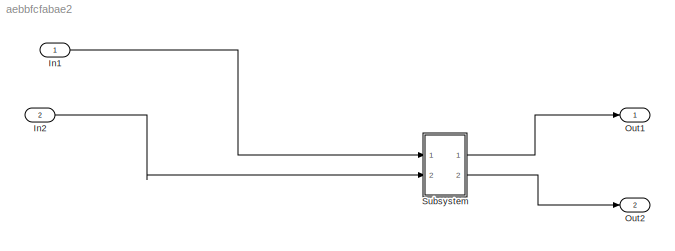
MODEL slx_aebbfcfabae2
KIND model
CONFIG AbsTol = auto
CONFIG FixedStep = auto
CONFIG MaxStep = auto
CONFIG MinStep = auto
CONFIG RelTol = 1e-3
CONFIG SampleTimeConstraint = Unconstrained
CONFIG Solver = VariableStepAuto
CONFIG SolverMode = Auto
CONFIG SolverName = VariableStepAuto
CONFIG StartTime = 0.0
CONFIG StopTime = 10.0
BLOCK [Inport] In1
  IconDisplay = Port number
BLOCK [Inport] In2
  IconDisplay = Port number
  Port = 2
BLOCK [Outport] Out1
  IconDisplay = Port number
BLOCK [Outport] Out2
  IconDisplay = Port number
  Port = 2
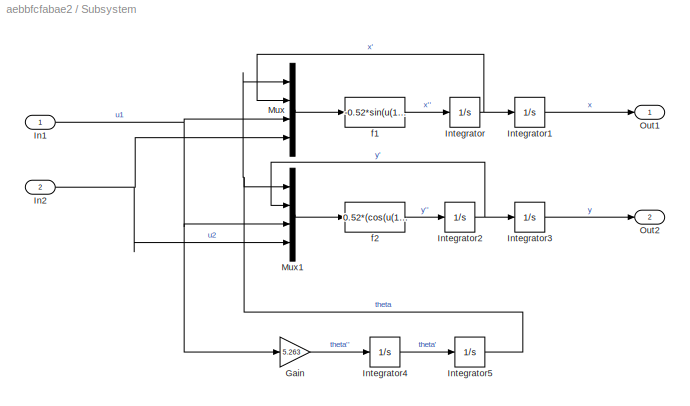
BLOCK [SubSystem] Subsystem
  Ports = [2, 2]
  RequestExecContextInheritance = off
  Variant = off
BLOCK [Gain] Subsystem/Gain
  Gain = 5.263
  OutDataTypeStr = Inherit: Inherit via internal rule
  ParamDataTypeStr = Inherit: Inherit via internal rule
  SaturateOnIntegerOverflow = off
BLOCK [Inport] Subsystem/In1
  IconDisplay = Port number
BLOCK [Inport] Subsystem/In2
  IconDisplay = Port number
  Port = 2
BLOCK [Integrator] Subsystem/Integrator
  Ports = [1, 1]
BLOCK [Integrator] Subsystem/Integrator1
  Ports = [1, 1]
BLOCK [Integrator] Subsystem/Integrator2
  Ports = [1, 1]
BLOCK [Integrator] Subsystem/Integrator3
  Ports = [1, 1]
BLOCK [Integrator] Subsystem/Integrator4
  Ports = [1, 1]
BLOCK [Integrator] Subsystem/Integrator5
  Ports = [1, 1]
BLOCK [Mux] Subsystem/Mux
  DisplayOption = bar
  Ports = [4, 1]
BLOCK [Mux] Subsystem/Mux1
  DisplayOption = bar
  Ports = [4, 1]
BLOCK [Outport] Subsystem/Out1
  IconDisplay = Port number
BLOCK [Outport] Subsystem/Out2
  IconDisplay = Port number
  Port = 2
BLOCK [Fcn] Subsystem/f1
  Expr = -0.52*sin(u(1))-0.0235*u(2)+0.235*u(3)*cos(u(1))-0.235*u(4)*sin(u(1))
BLOCK [Fcn] Subsystem/f2
  Expr = 0.52*(cos(u(1))-1)-0.0235*u(2)+0.235*u(3)*sin(u(1))+0.235*u(4)*cos(u(1))
LINE In1:1 -> Subsystem:1
LINE In2:1 -> Subsystem:2
LINE Subsystem/Gain:1 -> Subsystem/Integrator4:1
NET Subsystem/In1:1 -> Subsystem/Gain:1, Subsystem/Mux1:3, Subsystem/Mux:3
NET Subsystem/In2:1 -> Subsystem/Mux1:4, Subsystem/Mux:4
LINE Subsystem/Integrator1:1 -> Subsystem/Out1:1
NET Subsystem/Integrator2:1 -> Subsystem/Integrator3:1, Subsystem/Mux1:2
LINE Subsystem/Integrator3:1 -> Subsystem/Out2:1
LINE Subsystem/Integrator4:1 -> Subsystem/Integrator5:1
NET Subsystem/Integrator5:1 -> Subsystem/Mux1:1, Subsystem/Mux:1
NET Subsystem/Integrator:1 -> Subsystem/Integrator1:1, Subsystem/Mux:2
LINE Subsystem/Mux1:1 -> Subsystem/f2:1
LINE Subsystem/Mux:1 -> Subsystem/f1:1
LINE Subsystem/f1:1 -> Subsystem/Integrator:1
LINE Subsystem/f2:1 -> Subsystem/Integrator2:1
LINE Subsystem:1 -> Out1:1
LINE Subsystem:2 -> Out2:1
note: NET lines group one-source signal fan-out (src -> all destinations, sorted); 1:1 wires keep LINE
